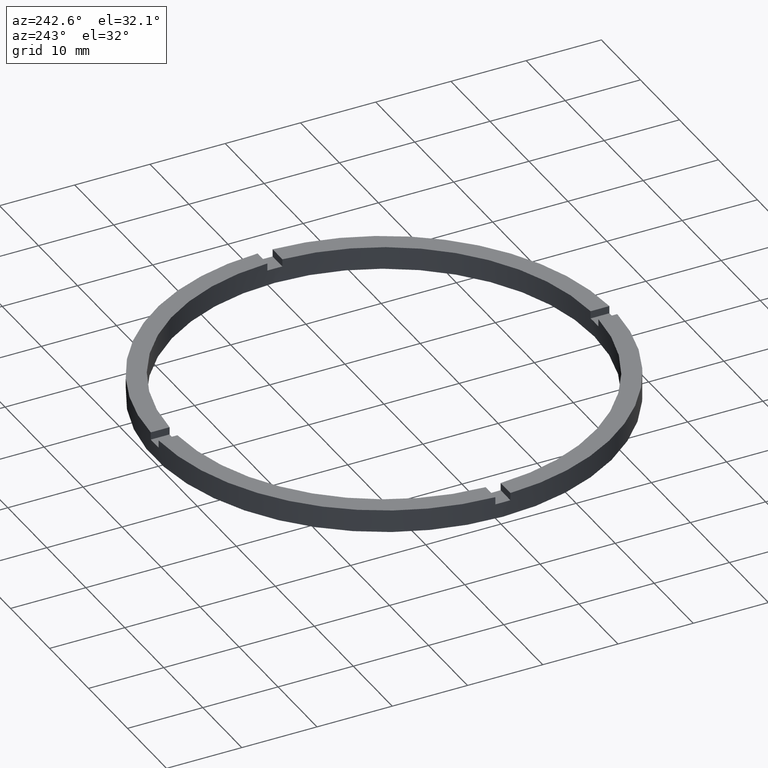
[diagram: clean part render]
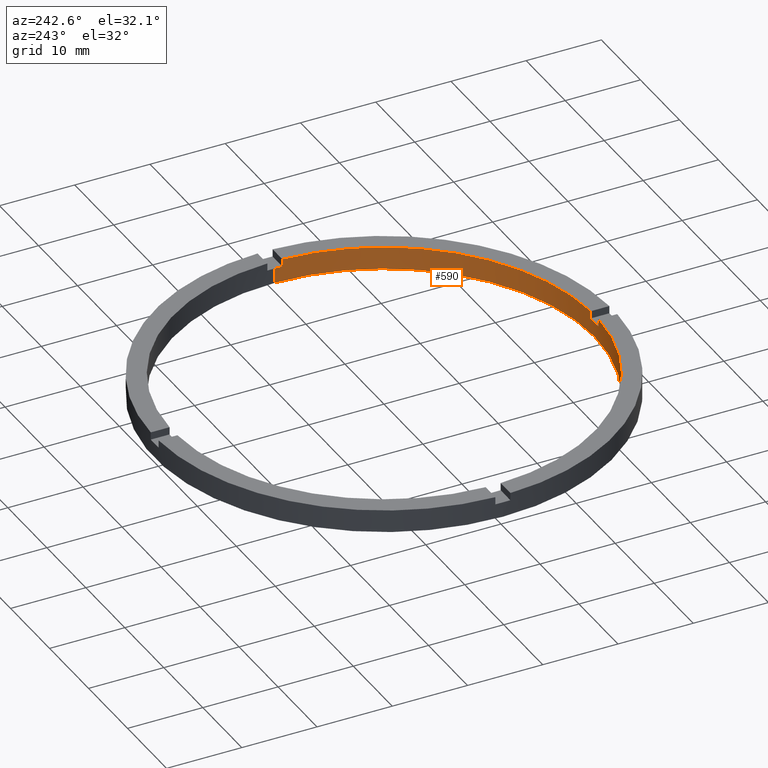
[diagram: same view with one face highlighted and labeled with its STEP entity id]
A machine part, auxiliary view. The second image highlights one B-rep face of the part: STEP entity #590.
In plain terms, the highlighted cylindrical surface (partial cylindrical patch) has radius 28 mm, axis along (-0, -0, -1).
Its self-contained STEP definition (entity closure, byte-faithful):
#1 = VERTEX_POINT ( 'NONE', #757 ) ;
#3 = ORIENTED_EDGE ( 'NONE', *, *, #407, .F. ) ;
#4 = CARTESIAN_POINT ( 'NONE',  ( 0.000000000000000000, 0.000000000000000000, 0.000000000000000000 ) ) ;
#10 = DIRECTION ( 'NONE',  ( -0.000000000000000000, 0.000000000000000000, 1.000000000000000000 ) ) ;
#13 = DIRECTION ( 'NONE',  ( 0.000000000000000000, 0.000000000000000000, 1.000000000000000000 ) ) ;
#18 = DIRECTION ( 'NONE',  ( -0.000000000000000000, -0.000000000000000000, -1.000000000000000000 ) ) ;
#24 = EDGE_CURVE ( 'NONE', #505, #68, #465, .T. ) ;
#30 = DIRECTION ( 'NONE',  ( -0.000000000000000000, -0.000000000000000000, -1.000000000000000000 ) ) ;
#32 = DIRECTION ( 'NONE',  ( 1.000000000000000000, 0.000000000000000000, 0.000000000000000000 ) ) ;
#36 = EDGE_CURVE ( 'NONE', #444, #713, #472, .T. ) ;
#39 = VECTOR ( 'NONE', #370, 1000.000000000000000 ) ;
#41 = AXIS2_PLACEMENT_3D ( 'NONE', #683, #758, #222 ) ;
#54 = ORIENTED_EDGE ( 'NONE', *, *, #571, .F. ) ;
#57 = EDGE_LOOP ( 'NONE', ( #188, #568, #54, #527, #272, #451, #269, #587, #319, #530, #64, #3 ) ) ;
#62 = DIRECTION ( 'NONE',  ( -1.000000000000000000, 0.000000000000000000, 0.000000000000000000 ) ) ;
#63 = DIRECTION ( 'NONE',  ( 1.000000000000000000, 0.000000000000000000, 0.000000000000000000 ) ) ;
#64 = ORIENTED_EDGE ( 'NONE', *, *, #129, .T. ) ;
#68 = VERTEX_POINT ( 'NONE', #417 ) ;
#77 = CARTESIAN_POINT ( 'NONE',  ( 0.000000000000000000, 0.000000000000000000, 2.000000000000000000 ) ) ;
#79 = CIRCLE ( 'NONE', #779, 28.00000000000000000 ) ;
#81 = EDGE_CURVE ( 'NONE', #186, #318, #722, .T. ) ;
#87 = VECTOR ( 'NONE', #30, 1000.000000000000000 ) ;
#91 = LINE ( 'NONE', #750, #351 ) ;
#108 = FACE_OUTER_BOUND ( 'NONE', #57, .T. ) ;
#114 = AXIS2_PLACEMENT_3D ( 'NONE', #127, #13, #63 ) ;
#127 = CARTESIAN_POINT ( 'NONE',  ( 0.000000000000000000, 0.000000000000000000, 3.000000000000000000 ) ) ;
#129 = EDGE_CURVE ( 'NONE', #198, #533, #711, .T. ) ;
#156 = EDGE_CURVE ( 'NONE', #444, #500, #447, .T. ) ;
#176 = CARTESIAN_POINT ( 'NONE',  ( -1.000000000000161871, -27.98213715926643985, 3.000000000000000000 ) ) ;
#186 = VERTEX_POINT ( 'NONE', #441 ) ;
#188 = ORIENTED_EDGE ( 'NONE', *, *, #81, .T. ) ;
#198 = VERTEX_POINT ( 'NONE', #495 ) ;
#222 = DIRECTION ( 'NONE',  ( 1.000000000000000000, 0.000000000000000000, 0.000000000000000000 ) ) ;
#225 = AXIS2_PLACEMENT_3D ( 'NONE', #77, #278, #254 ) ;
#243 = VERTEX_POINT ( 'NONE', #374 ) ;
#244 = CARTESIAN_POINT ( 'NONE',  ( 0.000000000000000000, 0.000000000000000000, 3.000000000000000000 ) ) ;
#254 = DIRECTION ( 'NONE',  ( 1.000000000000000000, 0.000000000000000000, 0.000000000000000000 ) ) ;
#269 = ORIENTED_EDGE ( 'NONE', *, *, #338, .T. ) ;
#272 = ORIENTED_EDGE ( 'NONE', *, *, #156, .T. ) ;
#278 = DIRECTION ( 'NONE',  ( 0.000000000000000000, 0.000000000000000000, 1.000000000000000000 ) ) ;
#280 = CARTESIAN_POINT ( 'NONE',  ( 28.00000000000000000, 3.429011037612589276E-15, 2.000000000000000000 ) ) ;
#286 = CARTESIAN_POINT ( 'NONE',  ( 0.000000000000000000, 0.000000000000000000, 3.000000000000000000 ) ) ;
#289 = AXIS2_PLACEMENT_3D ( 'NONE', #244, #535, #62 ) ;
#296 = AXIS2_PLACEMENT_3D ( 'NONE', #309, #10, #415 ) ;
#301 = DIRECTION ( 'NONE',  ( 0.000000000000000000, 0.000000000000000000, 1.000000000000000000 ) ) ;
#309 = CARTESIAN_POINT ( 'NONE',  ( 0.000000000000000000, 0.000000000000000000, 2.000000000000000000 ) ) ;
#318 = VERTEX_POINT ( 'NONE', #280 ) ;
#319 = ORIENTED_EDGE ( 'NONE', *, *, #382, .T. ) ;
#325 = DIRECTION ( 'NONE',  ( 0.000000000000000000, 0.000000000000000000, 1.000000000000000000 ) ) ;
#337 = LINE ( 'NONE', #532, #594 ) ;
#338 = EDGE_CURVE ( 'NONE', #243, #68, #381, .T. ) ;
#351 = VECTOR ( 'NONE', #684, 1000.000000000000000 ) ;
#361 = AXIS2_PLACEMENT_3D ( 'NONE', #286, #523, #32 ) ;
#370 = DIRECTION ( 'NONE',  ( 0.000000000000000000, 0.000000000000000000, 1.000000000000000000 ) ) ;
#374 = CARTESIAN_POINT ( 'NONE',  ( -27.98213715926644340, -1.000000000000024869, 3.000000000000000000 ) ) ;
#381 = CIRCLE ( 'NONE', #114, 28.00000000000000000 ) ;
#382 = EDGE_CURVE ( 'NONE', #505, #718, #748, .T. ) ;
#407 = EDGE_CURVE ( 'NONE', #186, #533, #555, .T. ) ;
#415 = DIRECTION ( 'NONE',  ( 1.000000000000000000, 0.000000000000000000, 0.000000000000000000 ) ) ;
#417 = CARTESIAN_POINT ( 'NONE',  ( -1.000000000000161871, -27.98213715926643985, 3.000000000000000000 ) ) ;
#441 = CARTESIAN_POINT ( 'NONE',  ( 27.98213715926643985, -1.000000000000158984, 2.000000000000000000 ) ) ;
#444 = VERTEX_POINT ( 'NONE', #556 ) ;
#447 = CIRCLE ( 'NONE', #41, 28.00000000000000000 ) ;
#451 = ORIENTED_EDGE ( 'NONE', *, *, #655, .F. ) ;
#465 = LINE ( 'NONE', #176, #720 ) ;
#472 = LINE ( 'NONE', #737, #732 ) ;
#495 = CARTESIAN_POINT ( 'NONE',  ( 0.9999999999998382405, -27.98213715926645051, 3.000000000000000000 ) ) ;
#500 = VERTEX_POINT ( 'NONE', #719 ) ;
#505 = VERTEX_POINT ( 'NONE', #656 ) ;
#523 = DIRECTION ( 'NONE',  ( 0.000000000000000000, 0.000000000000000000, 1.000000000000000000 ) ) ;
#524 = EDGE_CURVE ( 'NONE', #198, #718, #337, .T. ) ;
#527 = ORIENTED_EDGE ( 'NONE', *, *, #36, .F. ) ;
#530 = ORIENTED_EDGE ( 'NONE', *, *, #524, .F. ) ;
#532 = CARTESIAN_POINT ( 'NONE',  ( 0.9999999999998382405, -27.98213715926645051, 3.000000000000000000 ) ) ;
#533 = VERTEX_POINT ( 'NONE', #696 ) ;
#535 = DIRECTION ( 'NONE',  ( -0.000000000000000000, -0.000000000000000000, -1.000000000000000000 ) ) ;
#555 = LINE ( 'NONE', #610, #39 ) ;
#556 = CARTESIAN_POINT ( 'NONE',  ( -28.00000000000000000, 0.000000000000000000, 2.000000000000000000 ) ) ;
#568 = ORIENTED_EDGE ( 'NONE', *, *, #663, .T. ) ;
#569 = CARTESIAN_POINT ( 'NONE',  ( -27.98213715926644340, -1.000000000000024869, 3.000000000000000000 ) ) ;
#571 = EDGE_CURVE ( 'NONE', #713, #1, #79, .T. ) ;
#578 = CARTESIAN_POINT ( 'NONE',  ( -28.00000000000000000, 0.000000000000000000, 0.000000000000000000 ) ) ;
#587 = ORIENTED_EDGE ( 'NONE', *, *, #24, .F. ) ;
#590 = ADVANCED_FACE ( 'NONE', ( #108 ), #593, .F. ) ;
#593 = CYLINDRICAL_SURFACE ( 'NONE', #289, 28.00000000000000000 ) ;
#594 = VECTOR ( 'NONE', #689, 1000.000000000000000 ) ;
#598 = LINE ( 'NONE', #569, #87 ) ;
#610 = CARTESIAN_POINT ( 'NONE',  ( 27.98213715926643985, -1.000000000000158984, 3.000000000000000000 ) ) ;
#643 = CARTESIAN_POINT ( 'NONE',  ( 0.9999999999998382405, -27.98213715926645051, 2.000000000000000000 ) ) ;
#655 = EDGE_CURVE ( 'NONE', #243, #500, #598, .T. ) ;
#656 = CARTESIAN_POINT ( 'NONE',  ( -1.000000000000161871, -27.98213715926643985, 2.000000000000000000 ) ) ;
#663 = EDGE_CURVE ( 'NONE', #318, #1, #91, .T. ) ;
#683 = CARTESIAN_POINT ( 'NONE',  ( 0.000000000000000000, 0.000000000000000000, 2.000000000000000000 ) ) ;
#684 = DIRECTION ( 'NONE',  ( -0.000000000000000000, -0.000000000000000000, -1.000000000000000000 ) ) ;
#689 = DIRECTION ( 'NONE',  ( -0.000000000000000000, -0.000000000000000000, -1.000000000000000000 ) ) ;
#696 = CARTESIAN_POINT ( 'NONE',  ( 27.98213715926643985, -1.000000000000158984, 3.000000000000000000 ) ) ;
#711 = CIRCLE ( 'NONE', #361, 28.00000000000000000 ) ;
#713 = VERTEX_POINT ( 'NONE', #578 ) ;
#718 = VERTEX_POINT ( 'NONE', #643 ) ;
#719 = CARTESIAN_POINT ( 'NONE',  ( -27.98213715926644340, -1.000000000000024869, 2.000000000000000000 ) ) ;
#720 = VECTOR ( 'NONE', #325, 1000.000000000000000 ) ;
#722 = CIRCLE ( 'NONE', #225, 28.00000000000000000 ) ;
#732 = VECTOR ( 'NONE', #18, 1000.000000000000000 ) ;
#737 = CARTESIAN_POINT ( 'NONE',  ( -28.00000000000000000, 0.000000000000000000, 3.000000000000000000 ) ) ;
#748 = CIRCLE ( 'NONE', #296, 28.00000000000000000 ) ;
#750 = CARTESIAN_POINT ( 'NONE',  ( 28.00000000000000000, 3.429011037612589276E-15, 3.000000000000000000 ) ) ;
#757 = CARTESIAN_POINT ( 'NONE',  ( 28.00000000000000000, 3.429011037612589276E-15, 0.000000000000000000 ) ) ;
#758 = DIRECTION ( 'NONE',  ( 0.000000000000000000, 0.000000000000000000, 1.000000000000000000 ) ) ;
#773 = DIRECTION ( 'NONE',  ( 1.000000000000000000, 0.000000000000000000, 0.000000000000000000 ) ) ;
#779 = AXIS2_PLACEMENT_3D ( 'NONE', #4, #301, #773 ) ;